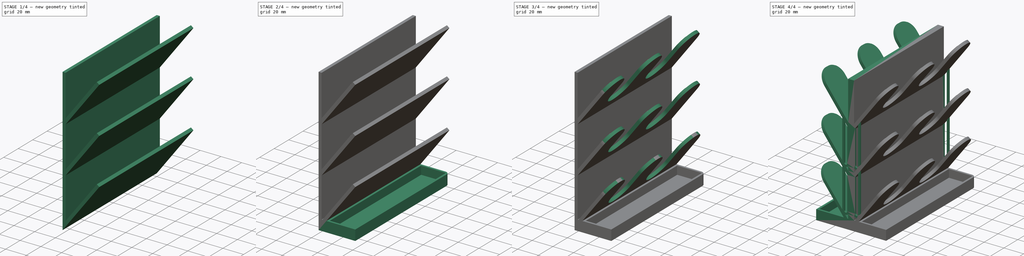
[diagram: build sequence overview — one tinted view per stage of 4, left to right]
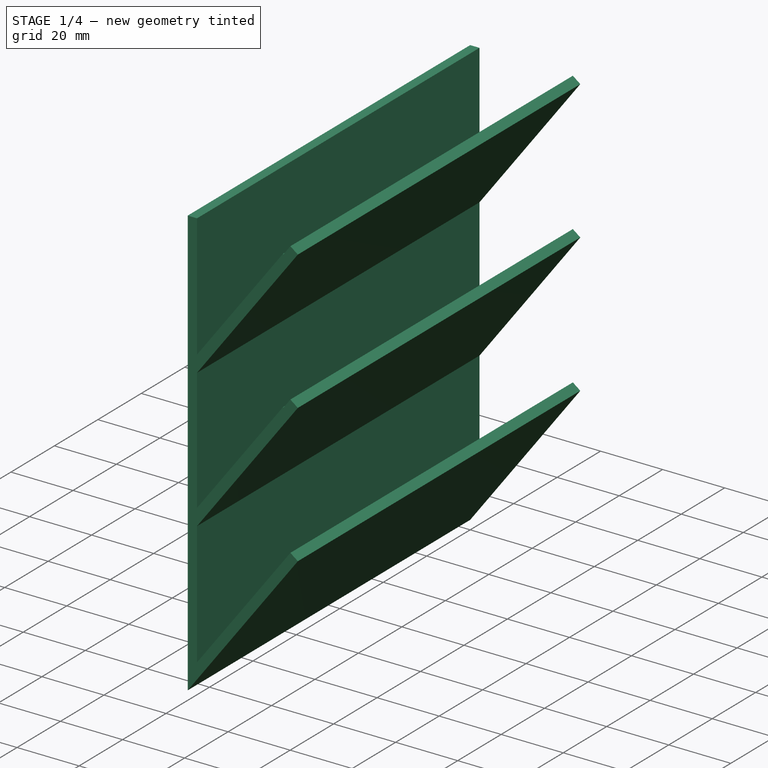
[diagram: stage 1 of 4 — iso view after this stage's code; geometry added in this stage tinted green]
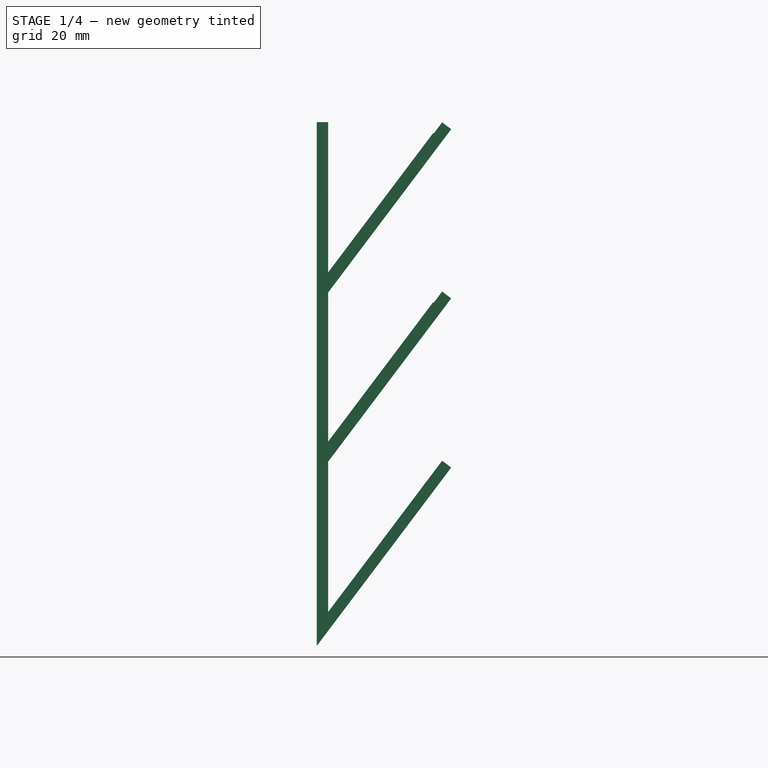
[diagram: stage 1 of 4 — front view after this stage's code; geometry added in this stage tinted green]
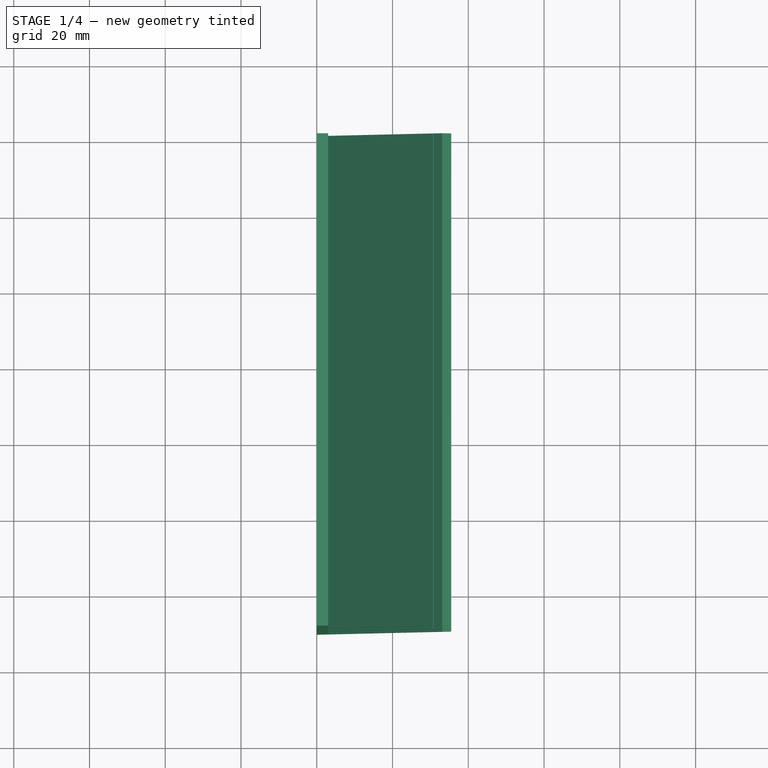
[diagram: stage 1 of 4 — top view after this stage's code; geometry added in this stage tinted green]
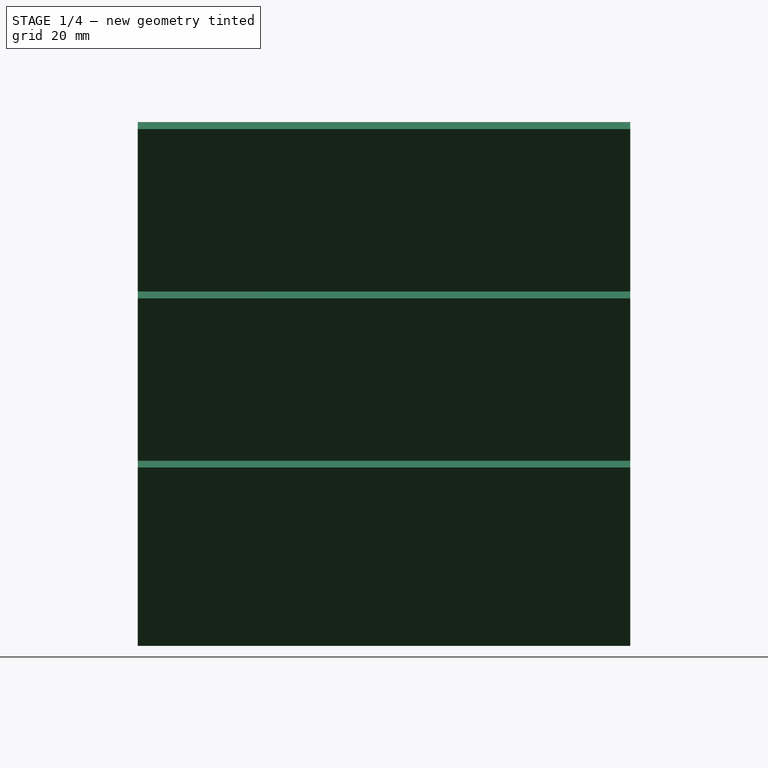
[diagram: stage 1 of 4 — right view after this stage's code; geometry added in this stage tinted green]
FCSTD DOCUMENT  (FreeCAD 1.1R41031 (Git))
Label: Полка
License: All rights reserved
LicenseURL: https://en.wikipedia.org/wiki/All_rights_reserved
objects: Sketcher::SketchObject×7, PartDesign::LinearPattern×4, PartDesign::Pocket×3, PartDesign::Pad×2, Measure::MeasureDistance×2, App::Point×1, PartDesign::Fillet×1, Part::DatumPlane×1, PartDesign::AdditivePipe×1, PartDesign::MultiTransform×1, PartDesign::Mirrored×1, PartDesign::Body×1, Measure::MeasureLength×1, App::DocumentObjectGroup×1
note: 48 computed .brp shape members not serialized (recipe doc carries the construction recipe); baked Part::Feature solids carry a one-line shape summary decoded from their .brp

FEATURE [App::Point] Origin001  label="Начало координат"
  Role = Origin
FEATURE [Sketcher::SketchObject] Sketch
  ArcFitTolerance = 1e-06
  AttachmentSupport = -> [XZ_Plane]
  ExternalTypes = [0]
  FullyConstrained = true
  MakeInternals = false
  MapMode = 5
  Placement = pos=(0,0,0) rot=(1,0,0;1.5708rad)
  sketch-geometry (8):
    g0: LineSegment StartX=0 StartY=49.9698 StartZ=0 EndX=0 EndY=0 EndZ=0
    g1: LineSegment StartX=0 StartY=0 StartZ=0 EndX=35.4867 EndY=47.0924 EndZ=0
    g2: LineSegment StartX=35.4867 StartY=47.0924 StartZ=0 EndX=33.0908 EndY=48.8978 EndZ=0
    g3: LineSegment StartX=33.0908 StartY=48.8978 StartZ=0 EndX=3 EndY=8.96605 EndZ=0
    g4: LineSegment StartX=3 StartY=8.96605 StartZ=0 EndX=3 EndY=48.9661 EndZ=0
    g5: LineSegment StartX=3 StartY=48.9661 StartZ=0 EndX=33.0908 EndY=88.8978 EndZ=0
    g6: LineSegment StartX=33.0908 StartY=88.8978 StartZ=0 EndX=30.6948 EndY=90.7033 EndZ=0
    g7: LineSegment StartX=30.6948 StartY=90.7033 StartZ=0 EndX=0 EndY=49.9698 EndZ=0
  constraints (27):
    c: Vertical(g0)
    c: Coincident(g0,g1)
    c: Coincident(g1,g2)
    c: Coincident(g2,g3)
    c: Coincident(g3,g4)
    c: Coincident(g4,g5)
    c: Coincident(g5,g6)
    c: Coincident(g6,g7)
    c: Coincident(g7,g0)
    c: Perpendicular(g6,g5)
    c: Perpendicular(g7,g6)
    c: Perpendicular(g2,g3)
    c: Perpendicular(g2,g1)
    c: Distance(g4,g4) = 40
    c: Distance(g6,g6) = 3
    c: Equal(g6,g2)
    c: DistanceX(g0,g4) = 3
    c: Equal(g3,g5)
    c: Parallel(g4,g0)
    c: Parallel(g3,g5)
    c: DistanceY(g0,g6) = 90.7033  'L4'
    c: DistanceY(g5,g6) = 1.80545  'L3'
    c: DistanceY(g0,g0) = 49.9698  'L1'
    c: DistanceY(g0,g3) = 8.96605  'L2'
    c: Angle(g7,g-2) = 0.645772
    c: Coincident(g0,g-1)
    c: Distance(g5,g5) = 50
FEATURE [PartDesign::Pad] Pad
  Direction = (0,-1,2e-16)
  Length = 130
  Length2 = 10
  Placement = pos=(0,0,0) rot=(1,0,0;1.5708rad)
  Profile = -> Sketch
  ReferenceAxis = -> Sketch [N_Axis]
  Refine = true
  Suppressed = false
  Type = 0
FEATURE [PartDesign::LinearPattern] LinearPattern
  BaseFeature = -> Pad
  Direction = -> Z_Axis
  Length = 89.32
  Mode = 1
  Occurrences = 3
  Offset = 44.66
  Originals = -> [Pad]
  Placement = pos=(0,0,0) rot=(1,0,0;1.5708rad)
  Refine = true
  Suppressed = false
  TransformMode = 0
FEATURE [Sketcher::SketchObject] Sketch001
  ArcFitTolerance = 1e-06
  AttachmentSupport = -> [LinearPattern]
  ExternalGeometry = -> [LinearPattern]
  ExternalTypes = [0,0]
  FullyConstrained = false
  MakeInternals = false
  MapMode = 5
  Placement = pos=(0,1.7e-15,0) rot=(-1,0,0;1.5708rad)
  sketch-geometry (4):
    g0: LineSegment StartX=9.9e-15 StartY=-138.286 StartZ=0 EndX=9.9e-15 EndY=-196.366 EndZ=0
    g1: LineSegment StartX=9.9e-15 StartY=-196.366 StartZ=0 EndX=57.4829 EndY=-196.366 EndZ=0
    g2: LineSegment StartX=57.4829 StartY=-196.366 StartZ=0 EndX=25.4716 EndY=-138.286 EndZ=0
    g3: LineSegment StartX=25.4716 StartY=-138.286 StartZ=0 EndX=1.07e-14 EndY=-138.286 EndZ=0
  constraints (9):
    c: Coincident(g0,g1)
    c: Coincident(g1,g2)
    c: Coincident(g2,g3)
    c: Coincident(g3,g0)
    c: Vertical(g0)
    c: Horizontal(g1)
    c: Horizontal(g3)
    c: PointOnObject(g-3,g3)
    c: PointOnObject(g-4,g0)
FEATURE [PartDesign::Pocket] Pocket
  BaseFeature = -> LinearPattern
  Direction = (0,-1,-2e-16)
  Length = 5
  Length2 = 5
  Placement = pos=(0,0,0) rot=(1,0,0;1.5708rad)
  Profile = -> Sketch001
  ReferenceAxis = -> Sketch001 [N_Axis]
  Refine = true
  Suppressed = false
  Type = 1
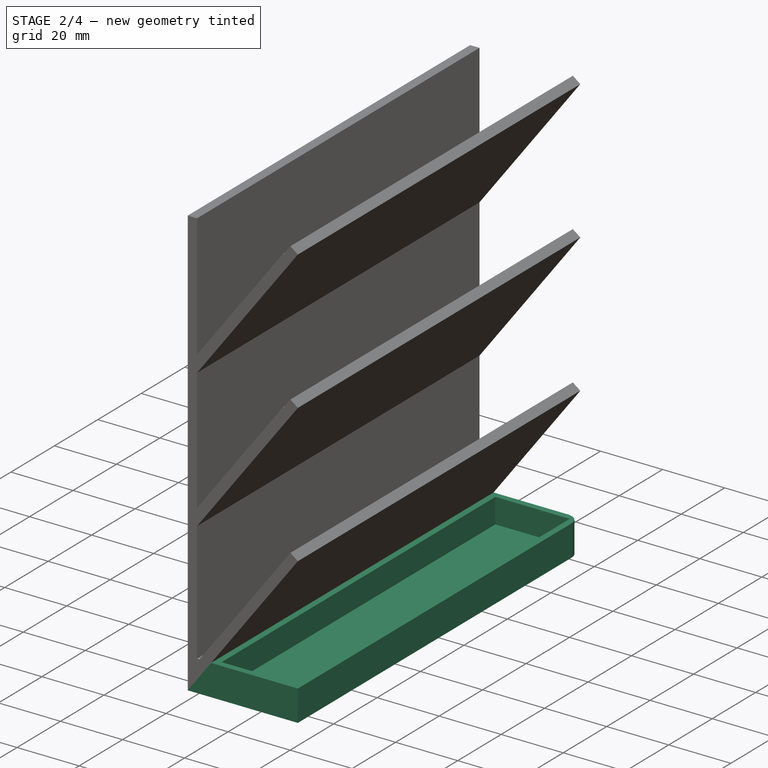
[diagram: stage 2 of 4 — iso view after this stage's code; geometry added in this stage tinted green]
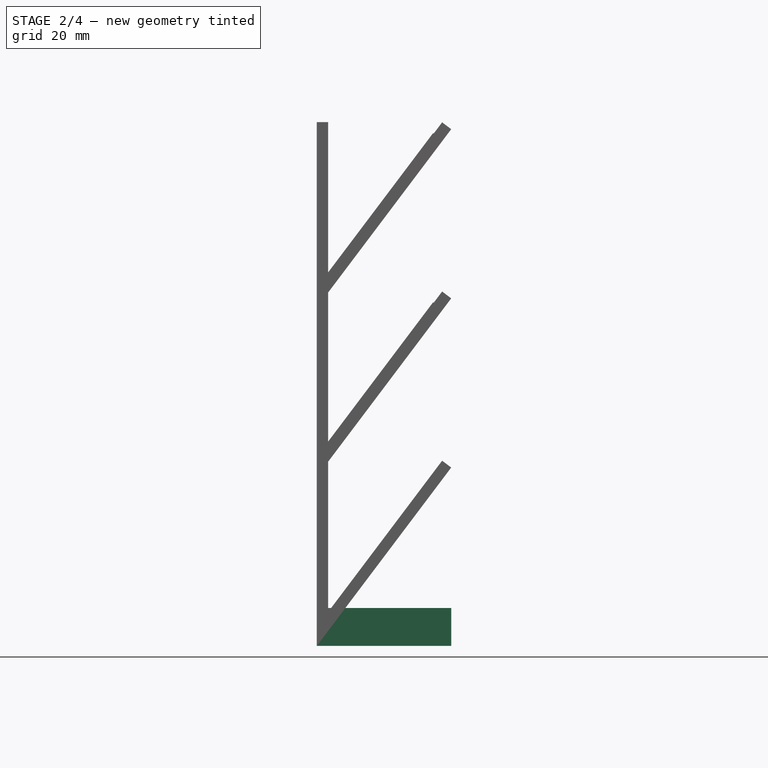
[diagram: stage 2 of 4 — front view after this stage's code; geometry added in this stage tinted green]
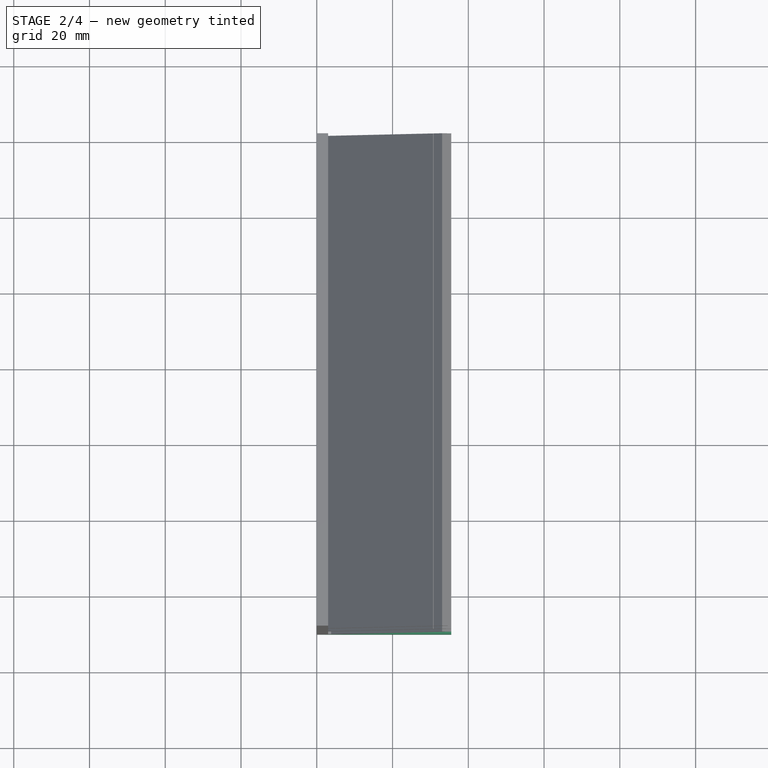
[diagram: stage 2 of 4 — top view after this stage's code; geometry added in this stage tinted green]
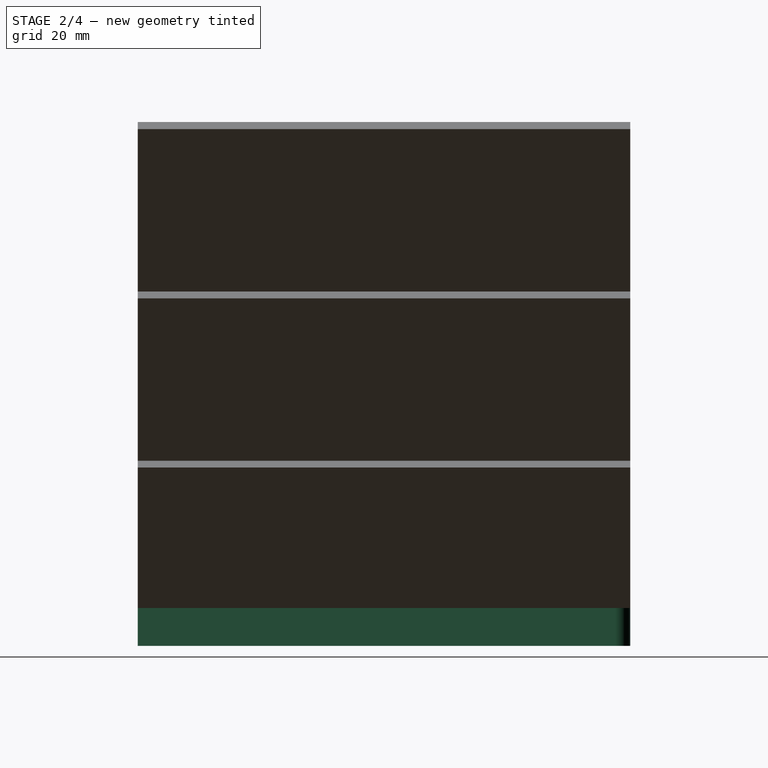
[diagram: stage 2 of 4 — right view after this stage's code; geometry added in this stage tinted green]
FEATURE [Sketcher::SketchObject] Sketch002
  ArcFitTolerance = 1e-06
  AttachmentSupport = -> [Pocket]
  ExternalGeometry = -> [Pocket]
  ExternalTypes = [0]
  FullyConstrained = true
  MakeInternals = false
  MapMode = 5
  Placement = pos=(0,1.7e-15,0) rot=(-1,0,0;1.5708rad)
  sketch-geometry (4):
    g0: LineSegment StartX=0 StartY=0 StartZ=0 EndX=0 EndY=-10 EndZ=0
    g1: LineSegment StartX=0 StartY=-10 StartZ=0 EndX=35.4867 EndY=-10 EndZ=0
    g2: LineSegment StartX=35.4867 StartY=-10 StartZ=0 EndX=35.4867 EndY=0 EndZ=0
    g3: LineSegment StartX=35.4867 StartY=0 StartZ=0 EndX=0 EndY=0 EndZ=0
  constraints (11):
    c: Coincident(g0,g1)
    c: Coincident(g1,g2)
    c: Coincident(g2,g3)
    c: Coincident(g3,g0)
    c: Vertical(g0)
    c: Vertical(g2)
    c: Horizontal(g1)
    c: Horizontal(g3)
    c: Coincident(g0,g-1)
    c: Vertical(g-3,g1)
    c: DistanceY(g2,g2) = 10
FEATURE [PartDesign::Pad] Pad001
  BaseFeature = -> Pocket
  Direction = (0,1,2e-16)
  Length = 10
  Length2 = 10
  Placement = pos=(0,0,0) rot=(1,0,0;1.5708rad)
  Profile = -> Sketch002
  ReferenceAxis = -> Sketch002 [N_Axis]
  Refine = true
  Suppressed = false
  Type = 3
  UpToFace = -> Pocket [Face5]
FEATURE [Sketcher::SketchObject] Sketch003
  ArcFitTolerance = 1e-06
  AttachmentSupport = -> [Pad001]
  ExternalGeometry = -> [Pad001]
  ExternalTypes = [0,0]
  FullyConstrained = true
  MakeInternals = false
  MapMode = 5
  Placement = pos=(0,-2.2e-15,10) rot=(0,0,1;3.14159rad)
  sketch-geometry (8):
    g0: LineSegment [constr] StartX=-33.4867 StartY=128 StartZ=0 EndX=-35.4867 EndY=128 EndZ=0
    g1: LineSegment [constr] StartX=-33.4867 StartY=128 StartZ=0 EndX=-33.4867 EndY=130 EndZ=0
    g2: LineSegment StartX=-33.4867 StartY=128 StartZ=0 EndX=-33.4867 EndY=2 EndZ=0
    g3: LineSegment StartX=-33.4867 StartY=2 StartZ=0 EndX=-9.53554 EndY=2 EndZ=0
    g4: LineSegment StartX=-9.53554 StartY=2 StartZ=0 EndX=-9.53554 EndY=128 EndZ=0
    g5: LineSegment StartX=-9.53554 StartY=128 StartZ=0 EndX=-33.4867 EndY=128 EndZ=0
    g6: LineSegment [constr] StartX=-9.53554 StartY=0 StartZ=0 EndX=-9.53554 EndY=2 EndZ=0
    g7: LineSegment [constr] StartX=-9.53554 StartY=2 StartZ=0 EndX=-7.53554 EndY=2 EndZ=0
  constraints (24):
    c: Horizontal(g0)
    c: Vertical(g1)
    c: Horizontal(g-3,g1)
    c: Coincident(g2,g3)
    c: Coincident(g3,g4)
    c: Coincident(g4,g5)
    c: Coincident(g5,g2)
    c: Vertical(g2)
    c: Vertical(g4)
    c: Horizontal(g3)
    c: Horizontal(g5)
    c: Coincident(g2,g1)
    c: Coincident(g0,g1)
    c: Equal(g0,g1)
    c: Vertical(g0,g-3)
    c: PointOnObject(g6,g-1)
    c: Coincident(g6,g3)
    c: Coincident(g7,g3)
    c: Equal(g7,g6)
    c: Vertical(g7,g-4)
    c: Vertical(g6)
    c: Horizontal(g7)
    c: DistanceX(g7,g7) = 2
    c: Equal(g7,g1)
FEATURE [PartDesign::Pocket] Pocket001
  BaseFeature = -> Pad001
  Direction = (0,0,-1)
  Length = 0
  Length2 = 5
  Offset = -2
  Placement = pos=(0,0,0) rot=(1,0,0;1.5708rad)
  Profile = -> Sketch003
  ReferenceAxis = -> Sketch003 [N_Axis]
  Refine = true
  Suppressed = false
  Type = 3
  UpToFace = -> Pad001 [Face1]
FEATURE [PartDesign::Fillet] Fillet
  Base = -> Pocket001 [Edge25]
  BaseFeature = -> Pocket001
  Placement = pos=(0,0,0) rot=(1,0,0;1.5708rad)
  Radius = 4
  Refine = true
  SupportTransform = false
  Suppressed = false
  UseAllEdges = false
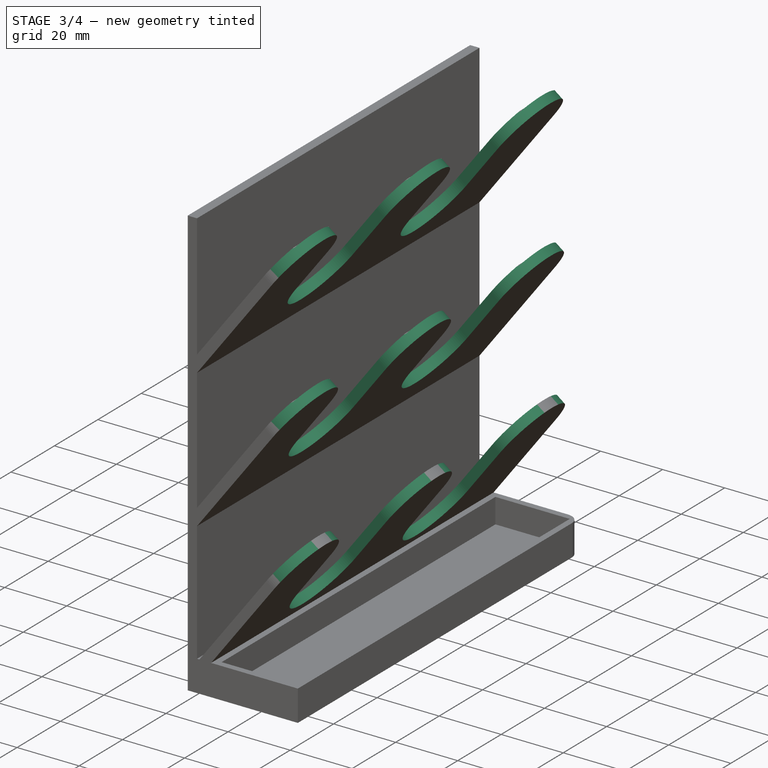
[diagram: stage 3 of 4 — iso view after this stage's code; geometry added in this stage tinted green]
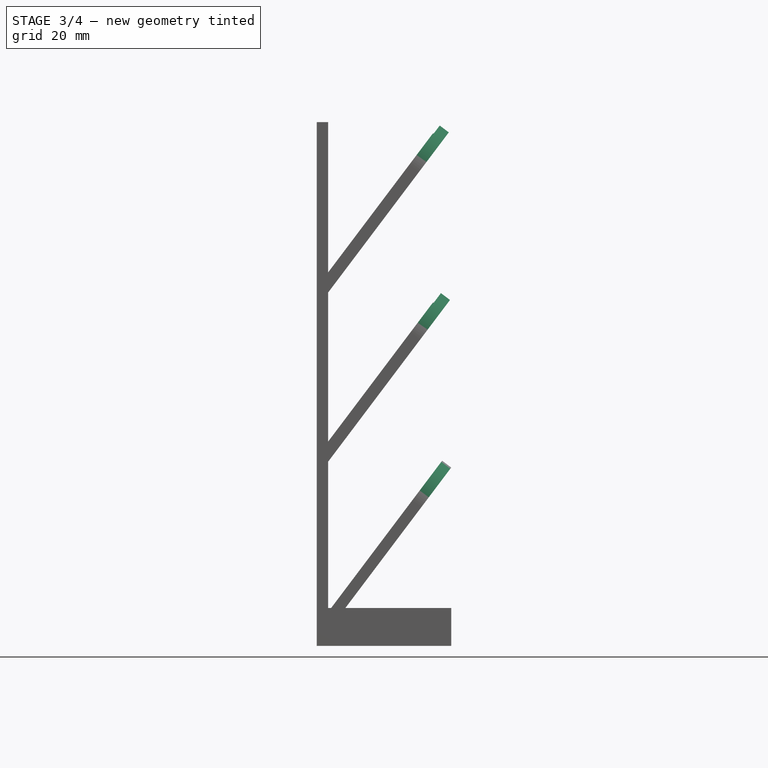
[diagram: stage 3 of 4 — front view after this stage's code; geometry added in this stage tinted green]
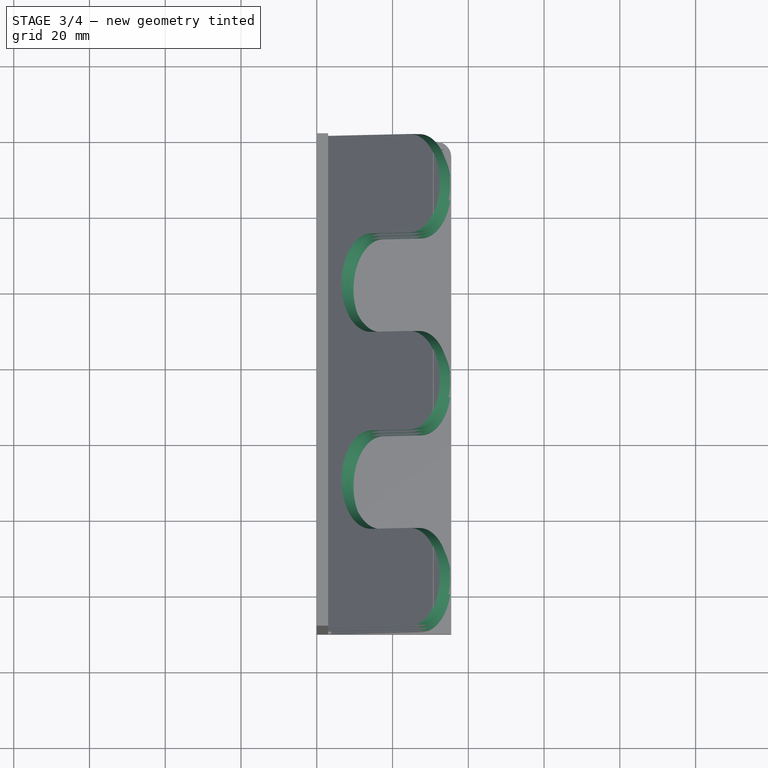
[diagram: stage 3 of 4 — top view after this stage's code; geometry added in this stage tinted green]
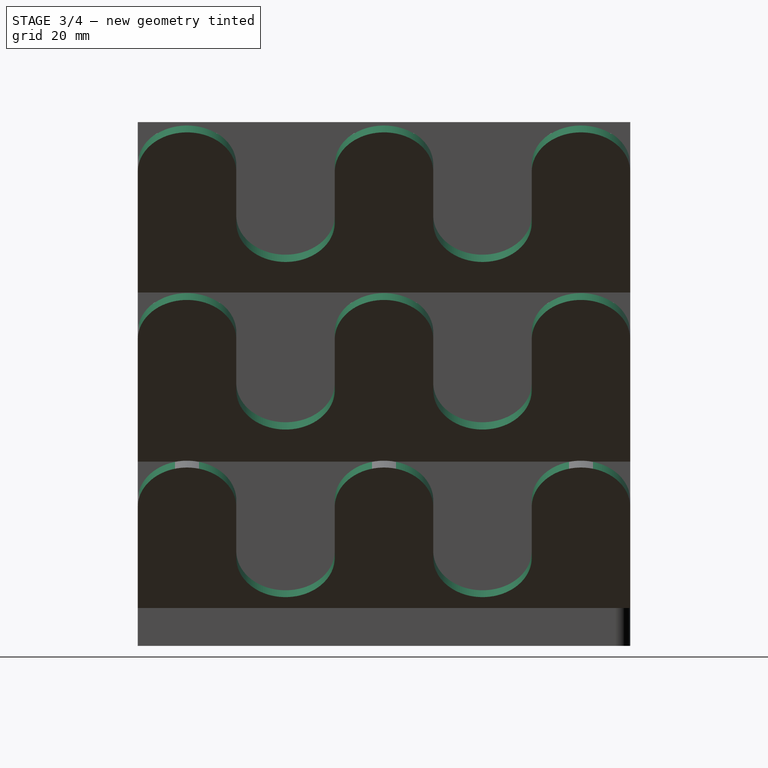
[diagram: stage 3 of 4 — right view after this stage's code; geometry added in this stage tinted green]
FEATURE [Sketcher::SketchObject] Sketch004
  ArcFitTolerance = 1e-06
  AttachmentSupport = -> [Fillet]
  ExternalGeometry = -> [Fillet]
  ExternalTypes = [0,0,0,0]
  FullyConstrained = false
  MakeInternals = false
  MapMode = 5
  Placement = pos=(0,0,0) rot=(0.894934,0,0.446198;3.14159rad)
  sketch-geometry (12):
    g0: LineSegment StartX=29.1285 StartY=104 StartZ=0 EndX=45.9661 EndY=104 EndZ=0
    g1: LineSegment StartX=29.1285 StartY=78 StartZ=0 EndX=45.9661 EndY=78 EndZ=0
    g2: LineSegment StartX=29.1285 StartY=52 StartZ=0 EndX=45.9661 EndY=52 EndZ=0
    g3: LineSegment StartX=29.1285 StartY=26 StartZ=0 EndX=45.9661 EndY=26 EndZ=0
    g4: ArcOfCircle CenterX=45.9661 CenterY=13 CenterZ=0 NormalX=0 NormalY=0 NormalZ=1 AngleXU=0 Radius=13 StartAngle=4.71239 EndAngle=7.85398
    g5: ArcOfCircle CenterX=45.9661 CenterY=65 CenterZ=0 NormalX=0 NormalY=0 NormalZ=1 AngleXU=0 Radius=13 StartAngle=4.71239 EndAngle=7.85398
    g6: ArcOfCircle CenterX=45.9661 CenterY=117 CenterZ=0 NormalX=0 NormalY=0 NormalZ=1 AngleXU=0 Radius=13 StartAngle=4.71239 EndAngle=7.85398
    g7: ArcOfCircle CenterX=29.1285 CenterY=91 CenterZ=0 NormalX=0 NormalY=0 NormalZ=1 AngleXU=0 Radius=13 StartAngle=1.5708 EndAngle=4.71239
    g8: ArcOfCircle CenterX=29.1285 CenterY=39 CenterZ=0 NormalX=0 NormalY=0 NormalZ=1 AngleXU=0 Radius=13 StartAngle=1.5708 EndAngle=4.71239
    g9: LineSegment StartX=45.9661 StartY=130 StartZ=0 EndX=72.2415 EndY=130 EndZ=0
    g10: LineSegment StartX=72.2415 StartY=130 StartZ=0 EndX=72.2415 EndY=0 EndZ=0
    g11: LineSegment StartX=72.2415 StartY=0 StartZ=0 EndX=45.9661 EndY=-8.9e-15 EndZ=0
  constraints (29):
    c: Horizontal(g0)
    c: Horizontal(g1)
    c: Horizontal(g2)
    c: Horizontal(g3)
    c: Equal(g6,g7)
    c: Equal(g7,g5)
    c: Equal(g5,g8)
    c: Equal(g8,g4)
    c: Tangent(g6,g-4)
    c: Tangent(g6,g0) = -1.5708
    c: Tangent(g7,g0) = 1.5708
    c: Tangent(g7,g1) = -1.5708
    c: Tangent(g5,g1) = 1.5708
    c: Tangent(g5,g2) = -1.5708
    c: Tangent(g8,g2) = 1.5708
    c: Tangent(g8,g3) = -1.5708
    c: Tangent(g3,g4) = 1.5708
    c: Vertical(g2,g1)
    c: Tangent(g5,g-4)
    c: Tangent(g4,g-4)
    c: Tangent(g4,g-5) = -1.5708
    c: Tangent(g6,g-6) = 1.5708
    c: Coincident(g6,g9)
    c: Coincident(g9,g10)
    c: Vertical(g10)
    c: Coincident(g10,g11)
    c: Coincident(g4,g11)
    c: PointOnObject(g10,g-1)
    c: PointOnObject(g9,g-6)
FEATURE [PartDesign::Pocket] Pocket002
  BaseFeature = -> Fillet
  Direction = (-0.798636,0,0.601815)
  Length = 5
  Length2 = 5
  Placement = pos=(0,0,0) rot=(1,0,0;1.5708rad)
  Profile = -> Sketch004
  ReferenceAxis = -> Sketch004 [N_Axis]
  Refine = true
  Suppressed = false
  Type = 0
FEATURE [PartDesign::LinearPattern] LinearPattern001
  BaseFeature = -> Pocket002
  Direction = -> Z_Axis
  Length = 88
  Mode = 1
  Occurrences = 3
  Offset = 44
  Originals = -> [Pocket002]
  Placement = pos=(0,0,0) rot=(1,0,0;1.5708rad)
  Refine = true
  Suppressed = false
  TransformMode = 0
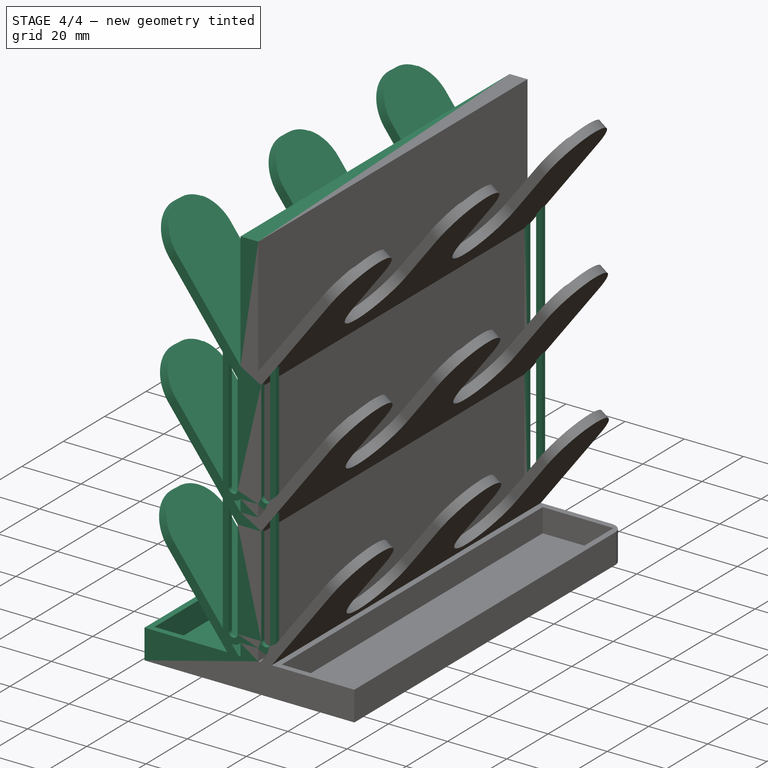
[diagram: stage 4 of 4 — iso view after this stage's code; geometry added in this stage tinted green]
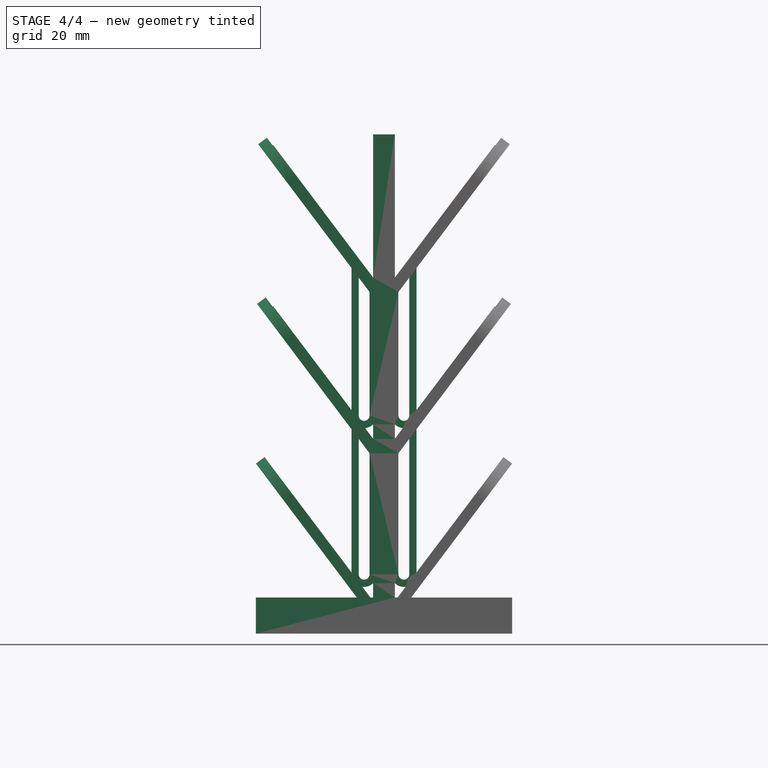
[diagram: stage 4 of 4 — front view after this stage's code; geometry added in this stage tinted green]
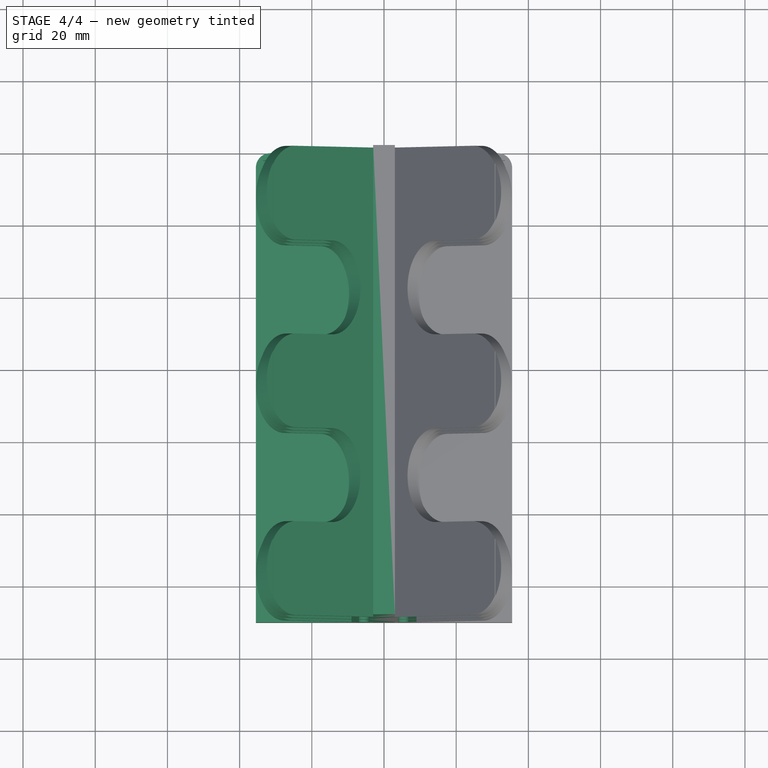
[diagram: stage 4 of 4 — top view after this stage's code; geometry added in this stage tinted green]
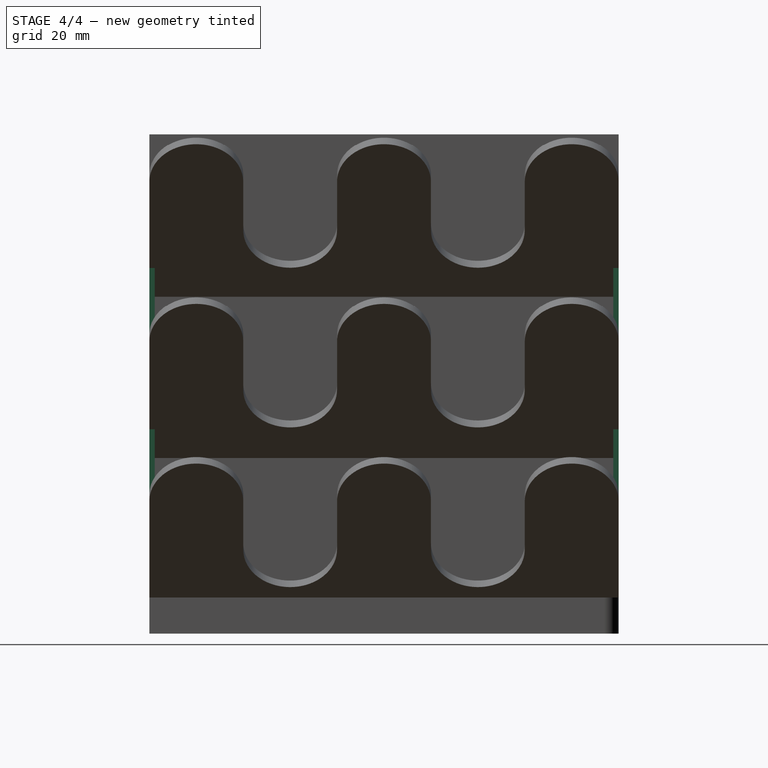
[diagram: stage 4 of 4 — right view after this stage's code; geometry added in this stage tinted green]
FEATURE [Sketcher::SketchObject] Sketch005
  ArcFitTolerance = 1e-06
  AttachmentSupport = -> [LinearPattern001]
  ExternalGeometry = -> [LinearPattern001]
  ExternalTypes = [0,0,0,0]
  FullyConstrained = false
  MakeInternals = false
  MapMode = 5
  Placement = pos=(0,-1.4e-15,0) rot=(-1,0,0;1.5708rad)
  sketch-geometry (3):
    g0: LineSegment StartX=3 StartY=-50.7566 StartZ=0 EndX=3 EndY=-16.4378 EndZ=0
    g1: LineSegment StartX=8 StartY=-16.4378 StartZ=0 EndX=8 EndY=-57.79 EndZ=0
    g2: ArcOfCircle CenterX=5.5 CenterY=-16.4378 CenterZ=0 NormalX=0 NormalY=0 NormalZ=1 AngleXU=0 Radius=2.5 StartAngle=-9e-16 EndAngle=3.14159
  constraints (7):
    c: Vertical(g0)
    c: Vertical(g1)
    c: PointOnObject(g0,g-4)
    c: Distance(g0,g1) = 5
    c: Tangent(g2,g0) = 1.5708
    c: Tangent(g2,g1) = 1.5708
    c: Tangent(g2,g-5)
FEATURE [Part::DatumPlane] DatumPlane
  AttachmentSupport = -> [Sketch005]
  MapMode = 7
  Placement = pos=(8,-1.43e-14,57.79) rot=(0,1,0;3.14159rad)
FEATURE [Sketcher::SketchObject] Sketch006
  ArcFitTolerance = 1e-06
  AttachmentSupport = -> [DatumPlane]
  ExternalTypes = [0]
  FullyConstrained = true
  MakeInternals = false
  MapMode = 5
  Placement = pos=(8,-1.43e-14,57.79) rot=(0,1,0;3.14159rad)
  sketch-geometry (4):
    g0: LineSegment StartX=1 StartY=-1.5 StartZ=0 EndX=1 EndY=0 EndZ=0
    g1: LineSegment StartX=1 StartY=0 StartZ=0 EndX=-1 EndY=0 EndZ=0
    g2: LineSegment StartX=-1 StartY=0 StartZ=0 EndX=-1 EndY=-1.5 EndZ=0
    g3: LineSegment StartX=-1 StartY=-1.5 StartZ=0 EndX=1 EndY=-1.5 EndZ=0
  constraints (11):
    c: Coincident(g0,g1)
    c: Coincident(g1,g2)
    c: Coincident(g2,g3)
    c: Coincident(g3,g0)
    c: Vertical(g0)
    c: Vertical(g2)
    c: Horizontal(g1)
    c: Horizontal(g3)
    c: Symmetric(g0,g1,g-1)
    c: DistanceX(g3,g3) = 2
    c: DistanceY(g0,g0) = 1.5
FEATURE [PartDesign::AdditivePipe] AdditivePipe
  AuxilleryCurvelinear = true
  AuxillerySpineTangent = false
  BaseFeature = -> LinearPattern001
  Binormal = (0,0,0)
  Mode = 0
  Placement = pos=(0,0,0) rot=(1,0,0;1.5708rad)
  Profile = -> Sketch006
  Refine = true
  Spine = -> Sketch005
  SpineTangent = false
  Suppressed = false
  Transformation = 0
  Transition = 0
FEATURE [PartDesign::LinearPattern] LinearPattern002
  Direction = -> Z_Axis
  Length = 44
  Mode = 0
  Occurrences = 2
  Offset = 44
  Placement = pos=(0,0,0) rot=(1,0,0;1.5708rad)
  Refine = true
  Suppressed = false
  TransformMode = 0
FEATURE [PartDesign::LinearPattern] LinearPattern003
  Direction = -> Y_Axis
  Length = 128.5
  Mode = 0
  Occurrences = 2
  Offset = 128.5
  Placement = pos=(0,0,0) rot=(1,0,0;1.5708rad)
  Refine = true
  Reversed = true
  Suppressed = false
  TransformMode = 0
FEATURE [PartDesign::MultiTransform] MultiTransform
  BaseFeature = -> AdditivePipe
  Originals = -> [AdditivePipe]
  Placement = pos=(0,0,0) rot=(1,0,0;1.5708rad)
  Refine = true
  Suppressed = false
  TransformMode = 0
  Transformations = -> [LinearPattern002,LinearPattern003]
FEATURE [PartDesign::Mirrored] Mirrored
  BaseFeature = -> MultiTransform
  MirrorPlane = -> YZ_Plane
  Originals = -> [MultiTransform]
  Placement = pos=(0,0,0) rot=(1,0,0;1.5708rad)
  Refine = true
  Suppressed = false
  TransformMode = 1
FEATURE [PartDesign::Body] Body  label="Тело"
  AllowCompound = false
  Group = -> [Sketch,Pad,LinearPattern,Sketch001,Pocket,Sketch002,Pad001,Sketch003,Pocket001,Fillet,Sketch004,Pocket002,LinearPattern001,Sketch005,DatumPlane,Sketch006,AdditivePipe,MultiTransform,LinearPattern002,LinearPattern003,Mirrored]
  Origin = -> Origin
  Tip = -> Mirrored
FEATURE [Measure::MeasureDistance] Distance  label="Distance: 35,49 mm"
  Distance = 35.4867
  DistanceX = 35.4867
  DistanceY = 0
  DistanceZ = 1.92e-14
  Element1 = -> Body [Pocket002.Edge29]
  Element2 = -> Body [Pocket002.Edge31]
  Position1 = (0,-130,-9.6e-15)
  Position2 = (35.4867,-130,-2.89e-14)
FEATURE [Measure::MeasureDistance] Distance001  label="Distance001: 135,34 mm"
  Distance = 135.342
  DistanceX = 0
  DistanceY = 5.11088
  DistanceZ = 135.246
  Element1 = -> Body [LinearPattern001.Edge138]
  Element2 = -> Body [LinearPattern001.Edge5]
  Position1 = (30.851,-124.889,135.246)
  Position2 = (30.851,-130,-2.89e-14)
FEATURE [Measure::MeasureLength] Length  label="Length: 23,95 mm"
  Elements = -> [Body]
  Length = 23.9511
FEATURE [App::DocumentObjectGroup] Measurements
  Group = -> [Distance,Distance001,Length]
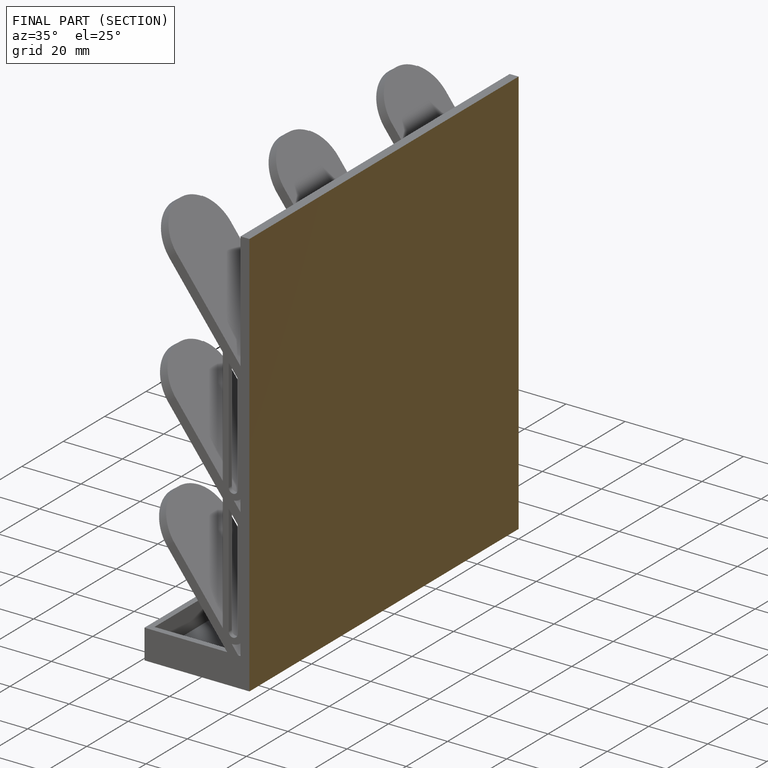
[diagram: finished part — half-section view (interior)]
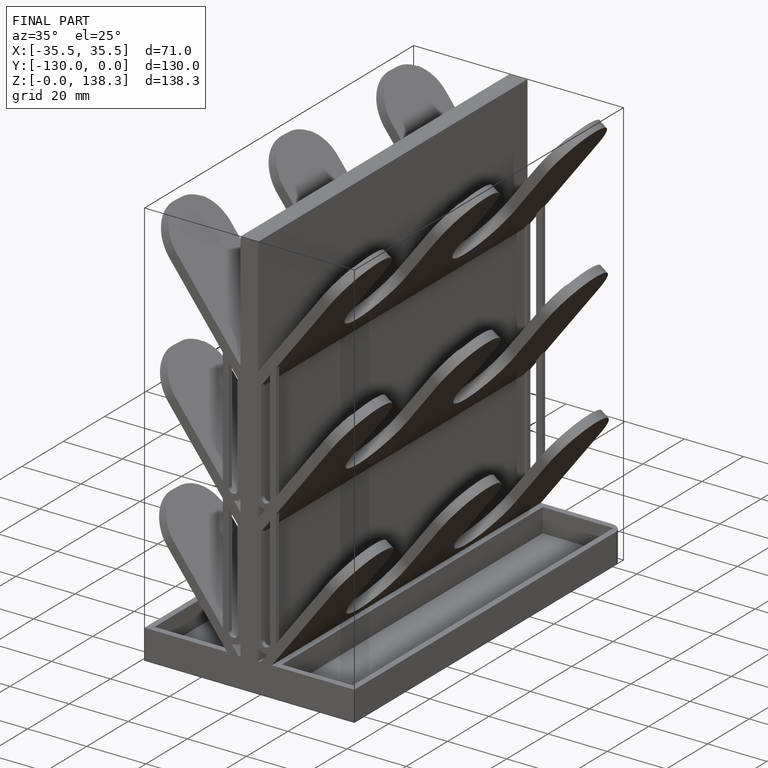
[diagram: finished part — iso view with bounding-box wireframe]
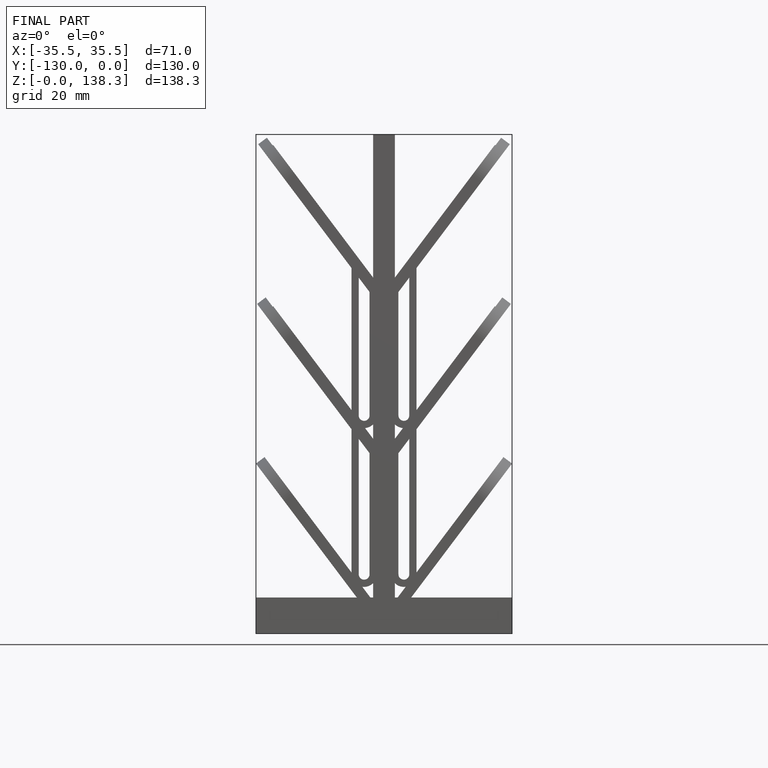
[diagram: finished part — front view with bounding-box wireframe]
